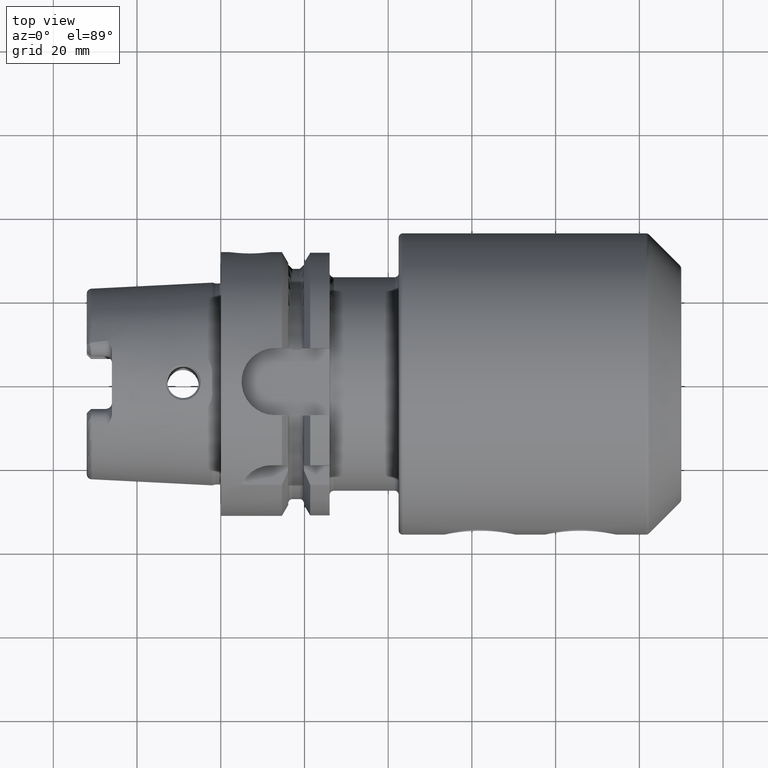
[diagram: clean part render]
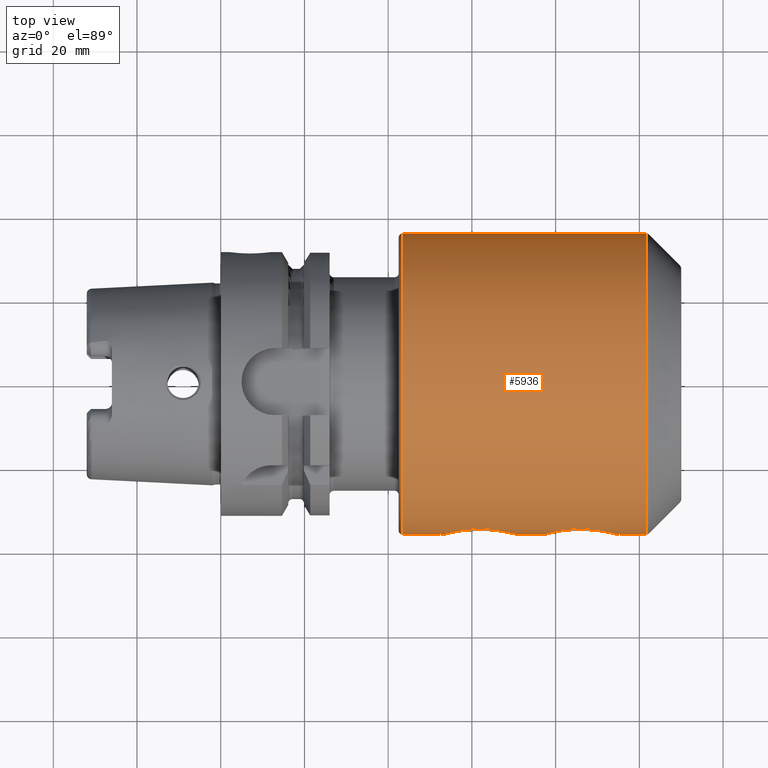
[diagram: same view with one face highlighted and labeled with its STEP entity id]
A machine part, top view. The second image highlights one B-rep face of the part: STEP entity #5936.
In plain terms, the highlighted cylindrical surface (partial cylindrical patch) has radius 36 mm, axis along (1, 0, 0).
Its self-contained STEP definition (entity closure, byte-faithful):
#2141=DIRECTION('',(-1.E0,0.E0,0.E0));
#2142=VECTOR('',#2141,6.503962037942E0);
#2143=CARTESIAN_POINT('',(7.724466648739E1,-3.6E1,0.E0));
#2144=LINE('',#2143,#2142);
#2176=DIRECTION('',(-1.E0,0.E0,0.E0));
#2177=VECTOR('',#2176,6.830452925012E0);
#2178=CARTESIAN_POINT('',(1.015857864376E2,-3.6E1,5.182296570885E-14));
#2179=LINE('',#2178,#2177);
#2185=DIRECTION('',(-1.E0,0.E0,0.E0));
#2186=VECTOR('',#2185,5.808578643763E1);
#2187=CARTESIAN_POINT('',(1.015857864376E2,3.6E1,-5.292167838113E-14));
#2188=LINE('',#2187,#2186);
#2194=DIRECTION('',(-1.E0,0.E0,0.E0));
#2195=VECTOR('',#2194,9.730037424214E0);
#2196=CARTESIAN_POINT('',(5.323003742421E1,-3.6E1,0.E0));
#2197=LINE('',#2196,#2195);
#2216=CARTESIAN_POINT('',(5.323003742421E1,-3.6E1,0.E0));
#2217=CARTESIAN_POINT('',(5.323003742421E1,-3.6E1,3.380168161393E-1));
#2218=CARTESIAN_POINT('',(5.326852522087E1,-3.599053966695E1,1.010223453264E0));
#2219=CARTESIAN_POINT('',(5.344320920429E1,-3.594815598264E1,2.014702217385E0));
#2220=CARTESIAN_POINT('',(5.373151213997E1,-3.587999155164E1,2.989305502444E0));
#2221=CARTESIAN_POINT('',(5.413417345165E1,-3.578857205464E1,3.932141881101E0));
#2222=CARTESIAN_POINT('',(5.464212902484E1,-3.567953445012E1,4.818863853118E0));
#2223=CARTESIAN_POINT('',(5.525596043071E1,-3.555725812286E1,5.647516872061E0));
#2224=CARTESIAN_POINT('',(5.595864791646E1,-3.543011652101E1,6.393526238647E0));
#2225=CARTESIAN_POINT('',(5.674688455547E1,-3.530394838057E1,7.054120882186E0));
#2226=CARTESIAN_POINT('',(5.760147090915E1,-3.518702436200E1,7.613300160334E0));
#2227=CARTESIAN_POINT('',(5.851214121557E1,-3.508525096583E1,8.067253651217E0));
#2228=CARTESIAN_POINT('',(5.946672461112E1,-3.500410539540E1,8.410756302114E0));
#2229=CARTESIAN_POINT('',(6.044697743131E1,-3.494795890917E1,8.640017315787E0));
#2230=CARTESIAN_POINT('',(6.145131450295E1,-3.491913771109E1,8.755238925992E0));
#2231=CARTESIAN_POINT('',(6.245627727430E1,-3.491930241089E1,8.754585582653E0));
#2232=CARTESIAN_POINT('',(6.346488005233E1,-3.494856089861E1,8.637595272189E0));
#2233=CARTESIAN_POINT('',(6.445247815780E1,-3.500534301185E1,8.405647223654E0));
#2234=CARTESIAN_POINT('',(6.541766466178E1,-3.508746186580E1,8.057714088955E0));
#2235=CARTESIAN_POINT('',(6.633892472750E1,-3.519025986252E1,7.598476903065E0));
#2236=CARTESIAN_POINT('',(6.720498312776E1,-3.530831236892E1,7.032441820896E0));
#2237=CARTESIAN_POINT('',(6.800188876660E1,-3.543512018515E1,6.365948957910E0));
#2238=CARTESIAN_POINT('',(6.871145907642E1,-3.556245982057E1,5.614851645670E0));
#2239=CARTESIAN_POINT('',(6.932902652109E1,-3.568421611371E1,4.784091223997E0));
#2240=CARTESIAN_POINT('',(6.983844513988E1,-3.579221695484E1,3.898599751983E0));
#2241=CARTESIAN_POINT('',(7.024110016945E1,-3.588234700920E1,2.960205062413E0));
#2242=CARTESIAN_POINT('',(7.052853789846E1,-3.594925416748E1,1.993521009307E0));
#2243=CARTESIAN_POINT('',(7.070248798399E1,-3.599076541205E1,
9.986660161559E-1));
#2244=CARTESIAN_POINT('',(7.074070444944E1,-3.6E1,3.339815657965E-1));
#2245=CARTESIAN_POINT('',(7.074070444944E1,-3.6E1,0.E0));
#2247=CARTESIAN_POINT('',(4.35E1,0.E0,0.E0));
#2248=DIRECTION('',(1.E0,0.E0,0.E0));
#2249=DIRECTION('',(0.E0,1.E0,0.E0));
#2250=AXIS2_PLACEMENT_3D('',#2247,#2248,#2249);
#2252=CARTESIAN_POINT('',(1.015857864376E2,0.E0,0.E0));
#2253=DIRECTION('',(-1.E0,0.E0,0.E0));
#2254=DIRECTION('',(0.E0,-1.E0,0.E0));
#2255=AXIS2_PLACEMENT_3D('',#2252,#2253,#2254);
#2257=CARTESIAN_POINT('',(7.724466648739E1,-3.6E1,0.E0));
#2258=CARTESIAN_POINT('',(7.724466648739E1,-3.6E1,3.380168161393E-1));
#2259=CARTESIAN_POINT('',(7.728315428404E1,-3.599053966695E1,1.010223453264E0));
#2260=CARTESIAN_POINT('',(7.745783826746E1,-3.594815598264E1,2.014702217385E0));
#2261=CARTESIAN_POINT('',(7.774614120314E1,-3.587999155164E1,2.989305502444E0));
#2262=CARTESIAN_POINT('',(7.814880251482E1,-3.578857205464E1,3.932141881101E0));
#2263=CARTESIAN_POINT('',(7.865675808801E1,-3.567953445012E1,4.818863853118E0));
#2264=CARTESIAN_POINT('',(7.927058949388E1,-3.555725812286E1,5.647516872061E0));
#2265=CARTESIAN_POINT('',(7.997327697963E1,-3.543011652101E1,6.393526238647E0));
#2266=CARTESIAN_POINT('',(8.076151361864E1,-3.530394838057E1,7.054120882186E0));
#2267=CARTESIAN_POINT('',(8.161609997232E1,-3.518702436200E1,7.613300160334E0));
#2268=CARTESIAN_POINT('',(8.252677027875E1,-3.508525096583E1,8.067253651217E0));
#2269=CARTESIAN_POINT('',(8.348135367429E1,-3.500410539540E1,8.410756302114E0));
#2270=CARTESIAN_POINT('',(8.446160649448E1,-3.494795890917E1,8.640017315787E0));
#2271=CARTESIAN_POINT('',(8.546594356612E1,-3.491913771109E1,8.755238925992E0));
#2272=CARTESIAN_POINT('',(8.647090633748E1,-3.491930241089E1,8.754585582653E0));
#2273=CARTESIAN_POINT('',(8.747950911550E1,-3.494856089861E1,8.637595272189E0));
#2274=CARTESIAN_POINT('',(8.846710722098E1,-3.500534301185E1,8.405647223655E0));
#2275=CARTESIAN_POINT('',(8.943229372495E1,-3.508746186580E1,8.057714088955E0));
#2276=CARTESIAN_POINT('',(9.035355379067E1,-3.519025986252E1,7.598476903065E0));
#2277=CARTESIAN_POINT('',(9.121961219093E1,-3.530831236892E1,7.032441820896E0));
#2278=CARTESIAN_POINT('',(9.201651782977E1,-3.543512018515E1,6.365948957910E0));
#2279=CARTESIAN_POINT('',(9.272608813959E1,-3.556245982057E1,5.614851645670E0));
#2280=CARTESIAN_POINT('',(9.334365558426E1,-3.568421611371E1,4.784091223997E0));
#2281=CARTESIAN_POINT('',(9.385307420305E1,-3.579221695484E1,3.898599751983E0));
#2282=CARTESIAN_POINT('',(9.425572923262E1,-3.588234700920E1,2.960205062413E0));
#2283=CARTESIAN_POINT('',(9.454316696163E1,-3.594925416748E1,1.993521009307E0));
#2284=CARTESIAN_POINT('',(9.471711704717E1,-3.599076541205E1,
9.986660161559E-1));
#2285=CARTESIAN_POINT('',(9.475533351261E1,-3.6E1,3.339815657965E-1));
#2286=CARTESIAN_POINT('',(9.475533351261E1,-3.6E1,0.E0));
#3460=CARTESIAN_POINT('',(1.015857864376E2,3.6E1,0.E0));
#3461=CARTESIAN_POINT('',(1.015857864376E2,-3.6E1,0.E0));
#3462=VERTEX_POINT('',#3460);
#3463=VERTEX_POINT('',#3461);
#3482=VERTEX_POINT('',#2257);
#3483=VERTEX_POINT('',#2286);
#3535=CARTESIAN_POINT('',(4.35E1,-3.6E1,0.E0));
#3536=CARTESIAN_POINT('',(4.35E1,3.6E1,0.E0));
#3537=VERTEX_POINT('',#3535);
#3538=VERTEX_POINT('',#3536);
#3543=VERTEX_POINT('',#2216);
#3544=VERTEX_POINT('',#2245);
#5918=CARTESIAN_POINT('',(2.18E1,0.E0,0.E0));
#5919=DIRECTION('',(1.E0,0.E0,0.E0));
#5920=DIRECTION('',(0.E0,-1.E0,0.E0));
#5921=AXIS2_PLACEMENT_3D('',#5918,#5919,#5920);
#5922=CYLINDRICAL_SURFACE('',#5921,3.6E1);
#5923=ORIENTED_EDGE('',*,*,#5905,.F.);
#5924=ORIENTED_EDGE('',*,*,#5876,.T.);
#5926=ORIENTED_EDGE('',*,*,#5925,.F.);
#5927=ORIENTED_EDGE('',*,*,#5873,.F.);
#5929=ORIENTED_EDGE('',*,*,#5928,.F.);
#5930=ORIENTED_EDGE('',*,*,#5869,.T.);
#5932=ORIENTED_EDGE('',*,*,#5931,.F.);
#5933=ORIENTED_EDGE('',*,*,#5865,.T.);
#5934=EDGE_LOOP('',(#5923,#5924,#5926,#5927,#5929,#5930,#5932,#5933));
#5935=FACE_OUTER_BOUND('',#5934,.F.);
#5936=ADVANCED_FACE('',(#5935),#5922,.T.);
#2246=B_SPLINE_CURVE_WITH_KNOTS('',3,(#2216,#2217,#2218,#2219,#2220,#2221,#2222,
#2223,#2224,#2225,#2226,#2227,#2228,#2229,#2230,#2231,#2232,#2233,#2234,#2235,
#2236,#2237,#2238,#2239,#2240,#2241,#2242,#2243,#2244,#2245),.UNSPECIFIED.,.F.,
.F.,(4,1,1,1,1,1,1,1,1,1,1,1,1,1,1,1,1,1,1,1,1,1,1,1,1,1,1,4),(0.E0,
3.703703703704E-2,7.407407407407E-2,1.111111111111E-1,1.481481481481E-1,
1.851851851852E-1,2.222222222222E-1,2.592592592593E-1,2.962962962963E-1,
3.333333333333E-1,3.703703703704E-1,4.074074074074E-1,4.444444444444E-1,
4.814814814815E-1,5.185185185185E-1,5.555555555556E-1,5.925925925926E-1,
6.296296296296E-1,6.666666666667E-1,7.037037037037E-1,7.407407407407E-1,
7.777777777778E-1,8.148148148148E-1,8.518518518519E-1,8.888888888889E-1,
9.259259259259E-1,9.629629629630E-1,1.E0),.UNSPECIFIED.);
#2251=CIRCLE('',#2250,3.6E1);
#2256=CIRCLE('',#2255,3.6E1);
#2287=B_SPLINE_CURVE_WITH_KNOTS('',3,(#2257,#2258,#2259,#2260,#2261,#2262,#2263,
#2264,#2265,#2266,#2267,#2268,#2269,#2270,#2271,#2272,#2273,#2274,#2275,#2276,
#2277,#2278,#2279,#2280,#2281,#2282,#2283,#2284,#2285,#2286),.UNSPECIFIED.,.F.,
.F.,(4,1,1,1,1,1,1,1,1,1,1,1,1,1,1,1,1,1,1,1,1,1,1,1,1,1,1,4),(0.E0,
3.703703703704E-2,7.407407407407E-2,1.111111111111E-1,1.481481481481E-1,
1.851851851852E-1,2.222222222222E-1,2.592592592593E-1,2.962962962963E-1,
3.333333333333E-1,3.703703703704E-1,4.074074074074E-1,4.444444444444E-1,
4.814814814815E-1,5.185185185185E-1,5.555555555556E-1,5.925925925926E-1,
6.296296296296E-1,6.666666666667E-1,7.037037037037E-1,7.407407407407E-1,
7.777777777778E-1,8.148148148148E-1,8.518518518519E-1,8.888888888889E-1,
9.259259259259E-1,9.629629629630E-1,1.E0),.UNSPECIFIED.);
#5865=EDGE_CURVE('',#3482,#3544,#2144,.T.);
#5869=EDGE_CURVE('',#3463,#3483,#2179,.T.);
#5873=EDGE_CURVE('',#3462,#3538,#2188,.T.);
#5876=EDGE_CURVE('',#3543,#3537,#2197,.T.);
#5905=EDGE_CURVE('',#3543,#3544,#2246,.T.);
#5925=EDGE_CURVE('',#3538,#3537,#2251,.T.);
#5928=EDGE_CURVE('',#3463,#3462,#2256,.T.);
#5931=EDGE_CURVE('',#3482,#3483,#2287,.T.);